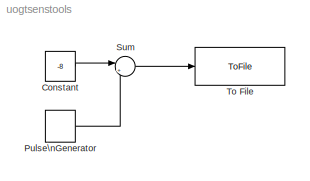
MODEL uogtsenstools
KIND model
BLOCK [Constant] Constant
  OutDataType = fixdt(1, 16)
  OutScaling = 2^0
  SID = 1
  Value = -8
BLOCK [DiscretePulseGenerator] Pulse\nGenerator
  Amplitude = 16
  Period = 4
  PhaseDelay = 0
  Ports = [0, 1]
  PulseType = Time based
  PulseWidth = 50
  SID = 2
  SampleTime = 1
BLOCK [Sum] Sum
  IconShape = round
  InputSameDT = off
  Inputs = |++
  OutDataType = fixdt(1, 16)
  OutDataTypeMode = Inherit via internal rule
  OutDataTypeStr = Inherit: Inherit via internal rule
  OutScaling = 2^0
  Ports = [2, 1]
  SID = 3
  SaturateOnIntegerOverflow = off
BLOCK [ToFile] To File
  Filename = Usenstools.mat
  SID = 4
  SampleTime = 0.01
LINE Constant:1 -> Sum:1
LINE Pulse\nGenerator:1 -> Sum:2
LINE Sum:1 -> To File:1
